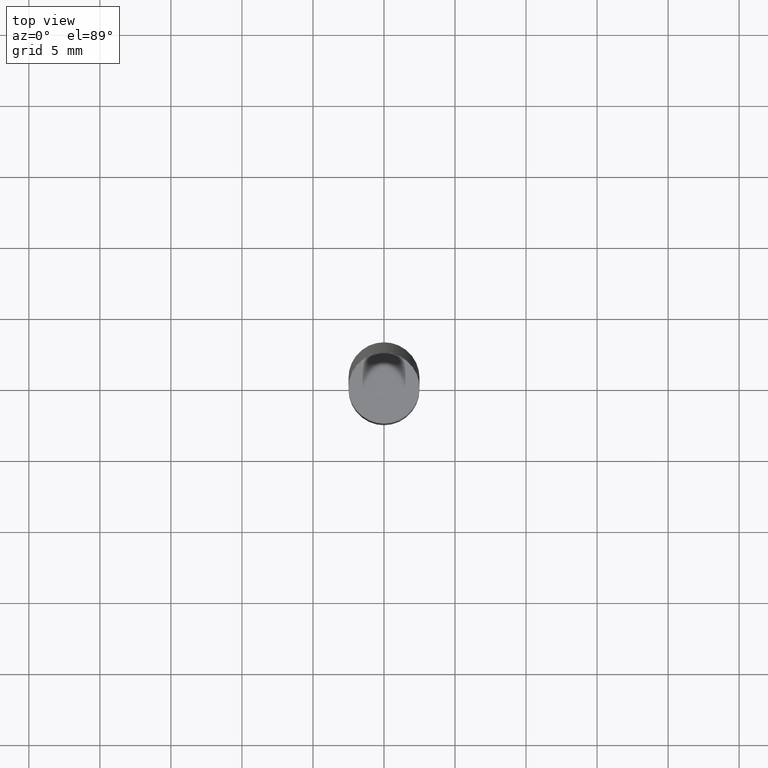
[diagram: clean part render]
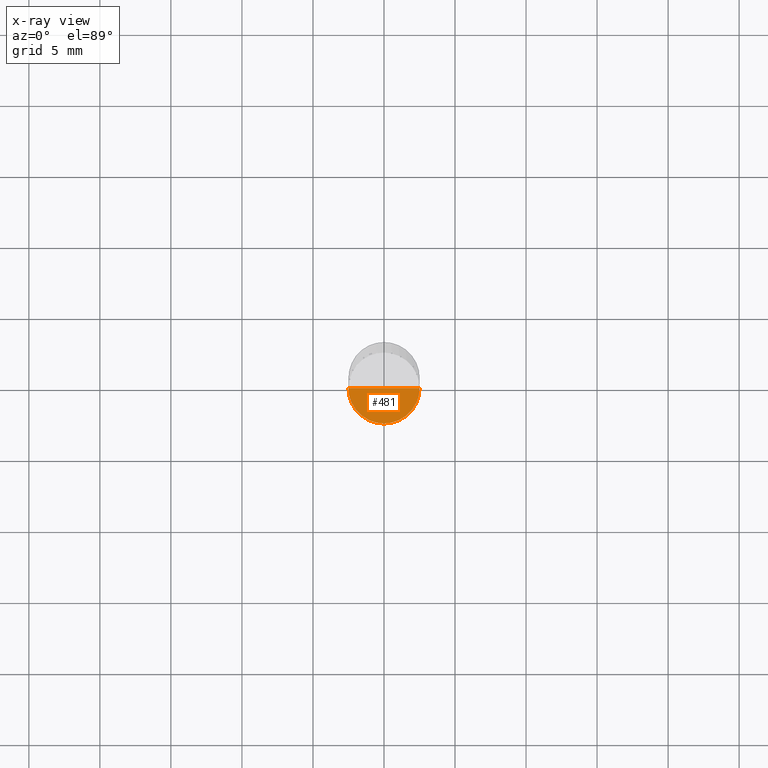
[diagram: x-ray — body ghosted, one internal face saturated and labeled with its STEP entity id]
A machine part, top view, then the same camera in x-ray: the body is ghosted and one INTERNAL B-rep face — a face not visible from any outside direction — is saturated and labeled: STEP entity #481.
In plain terms, the highlighted face is a freeform B-spline surface patch.
Its self-contained STEP definition (entity closure, byte-faithful):
#333=CARTESIAN_POINT('',(2.5,0.0,-5.0));
#337=CARTESIAN_POINT('',(-2.5,0.0,-5.0));
#338=CARTESIAN_POINT('',(0.0,0.0,-5.0));
#345=CARTESIAN_POINT('',(-2.5,-2.5,-5.0));
#346=CARTESIAN_POINT('',(0.0,-2.5,-5.0));
#347=CARTESIAN_POINT('',(2.5,-2.5,-5.0));
#466=(
BOUNDED_SURFACE()
B_SPLINE_SURFACE(1,2,(
(#337,#345,#346,#347,#333),
(#338,#338,#338,#338,#338)
), .UNSPECIFIED.,.F.,.F.,.F.)
B_SPLINE_SURFACE_WITH_KNOTS((2,2),(3,2,3),(
0.0,1.0),(
0.0,0.5,1.0), .UNSPECIFIED.)
GEOMETRIC_REPRESENTATION_ITEM()
RATIONAL_B_SPLINE_SURFACE(((1.0,0.707106781187,1.0,0.707106781187,1.0),
(1.0,0.707106781187,1.0,0.707106781187,1.0)
))
REPRESENTATION_ITEM('')
SURFACE()
);
#467=(
BOUNDED_CURVE()
B_SPLINE_CURVE(2,(#333,#347,#346,#345,#337),.UNSPECIFIED.,.F.,.F.)
B_SPLINE_CURVE_WITH_KNOTS((3,2,3),
(0.0,0.5,1.0),.UNSPECIFIED.)
CURVE()
GEOMETRIC_REPRESENTATION_ITEM()
RATIONAL_B_SPLINE_CURVE((1.0,0.707106781187,1.0,0.707106781187,1.0))
REPRESENTATION_ITEM('')
);
#468=(
BOUNDED_CURVE()
B_SPLINE_CURVE(1,(#337,#338),.UNSPECIFIED.,.F.,.F.)
B_SPLINE_CURVE_WITH_KNOTS((2,2),
(0.0,1.0),.UNSPECIFIED.)
CURVE()
GEOMETRIC_REPRESENTATION_ITEM()
RATIONAL_B_SPLINE_CURVE((1.0,1.0))
REPRESENTATION_ITEM('')
);
#469=(
BOUNDED_CURVE()
B_SPLINE_CURVE(1,(#338,#333),.UNSPECIFIED.,.F.,.F.)
B_SPLINE_CURVE_WITH_KNOTS((2,2),
(0.0,1.0),.UNSPECIFIED.)
CURVE()
GEOMETRIC_REPRESENTATION_ITEM()
RATIONAL_B_SPLINE_CURVE((1.0,1.0))
REPRESENTATION_ITEM('')
);
#470=VERTEX_POINT('',#333);
#471=VERTEX_POINT('',#337);
#472=VERTEX_POINT('',#338);
#473=EDGE_CURVE('',#470,#471,#467,.T.);
#474=EDGE_CURVE('',#471,#472,#468,.T.);
#475=EDGE_CURVE('',#472,#470,#469,.T.);
#476=ORIENTED_EDGE('',*,*,#473,.T.);
#477=ORIENTED_EDGE('',*,*,#474,.T.);
#478=ORIENTED_EDGE('',*,*,#475,.T.);
#479=EDGE_LOOP('',(#476,#477,#478));
#480=FACE_OUTER_BOUND('',#479,.T.);
#481=ADVANCED_FACE('',(#480),#466,.T.);